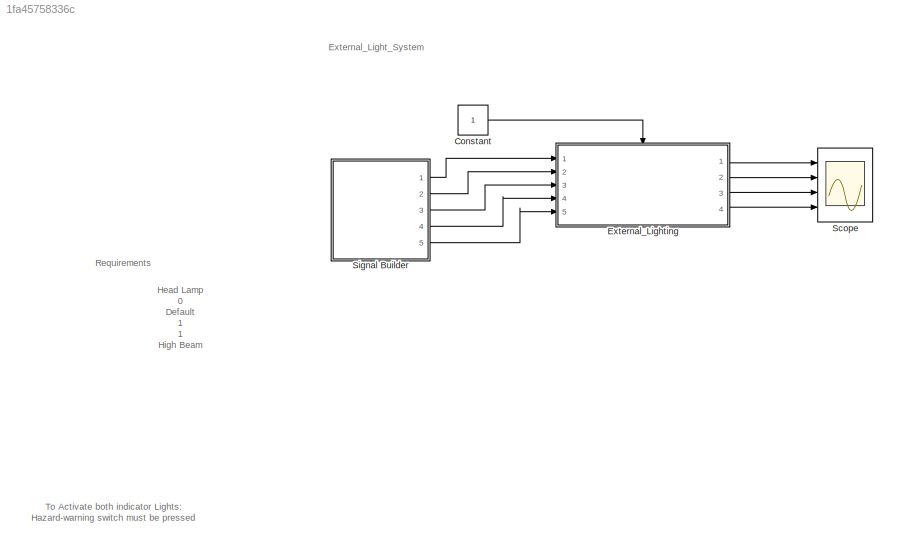
MODEL slx_1fa45758336c
KIND model
CONFIG AbsTol = auto
CONFIG EnableMultiTasking = off
CONFIG FixedStep = auto
CONFIG MaxStep = auto
CONFIG MinStep = auto
CONFIG RelTol = 1e-3
CONFIG SampleTimeConstraint = Unconstrained
CONFIG SolverName = VariableStepAuto
CONFIG StartTime = 0.0
CONFIG StopTime = 10.0
BLOCK [Constant] Constant
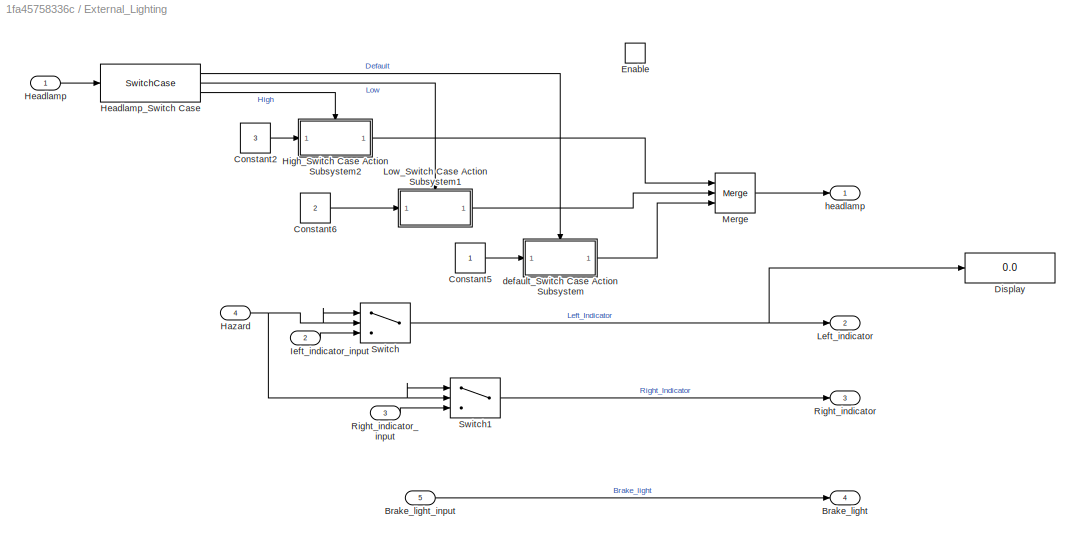
BLOCK [SubSystem] External_Lighting
  Ports = [5, 4, 1]
  RequestExecContextInheritance = off
BLOCK [Outport] External_Lighting/Brake_light
  Port = 4
BLOCK [Inport] External_Lighting/Brake_light_input
  Port = 5
BLOCK [Constant] External_Lighting/Constant2
  Value = 3
BLOCK [Constant] External_Lighting/Constant5
BLOCK [Constant] External_Lighting/Constant6
  Value = 2
BLOCK [Display] External_Lighting/Display
  Decimation = 1
  Ports = [1]
BLOCK [EnablePort] External_Lighting/Enable
  Ports = []
BLOCK [Inport] External_Lighting/Hazard
  Port = 4
BLOCK [Inport] External_Lighting/Headlamp
BLOCK [SwitchCase] External_Lighting/Headlamp_Switch Case
  CaseConditions = {0,-1,1}
  Ports = [1, 3]
  ShowDefaultCase = off
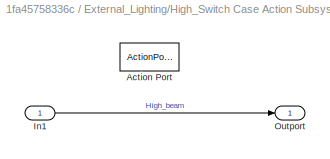
BLOCK [SubSystem] External_Lighting/High_Switch Case Action Subsystem2
  Ports = [1, 1, 0, 0, 0, 0, 0, 1]
  RequestExecContextInheritance = off
  TreatAsAtomicUnit = on
BLOCK [ActionPort] External_Lighting/High_Switch Case Action Subsystem2/Action Port
  ActionPortLabel = case [ 1 ]:
BLOCK [Inport] External_Lighting/High_Switch Case Action Subsystem2/In1
BLOCK [Outport] External_Lighting/High_Switch Case Action Subsystem2/Outport
BLOCK [Inport] External_Lighting/Ieft_indicator_input
  Port = 2
BLOCK [Outport] External_Lighting/Left_indicator
  Port = 2
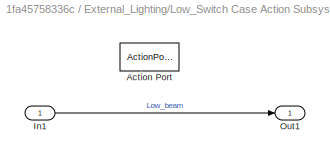
BLOCK [SubSystem] External_Lighting/Low_Switch Case Action Subsystem1
  Ports = [1, 1, 0, 0, 0, 0, 0, 1]
  RequestExecContextInheritance = off
  TreatAsAtomicUnit = on
BLOCK [ActionPort] External_Lighting/Low_Switch Case Action Subsystem1/Action Port
  ActionPortLabel = case [ -1 ]:
BLOCK [Inport] External_Lighting/Low_Switch Case Action Subsystem1/In1
BLOCK [Outport] External_Lighting/Low_Switch Case Action Subsystem1/Out1
BLOCK [Merge] External_Lighting/Merge
  Inputs = 3
  Ports = [3, 1]
BLOCK [Outport] External_Lighting/Right_indicator
  Port = 3
BLOCK [Inport] External_Lighting/Right_indicator_input
  Port = 3
BLOCK [Switch] External_Lighting/Switch
  Criteria = u2 > Threshold
  InputSameDT = off
  SaturateOnIntegerOverflow = off
BLOCK [Switch] External_Lighting/Switch1
  Criteria = u2 > Threshold
  InputSameDT = off
  SaturateOnIntegerOverflow = off
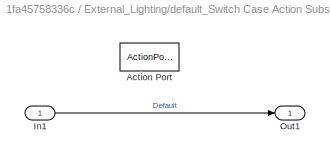
BLOCK [SubSystem] External_Lighting/default_Switch Case Action Subsystem
  Ports = [1, 1, 0, 0, 0, 0, 0, 1]
  RequestExecContextInheritance = off
  TreatAsAtomicUnit = on
BLOCK [ActionPort] External_Lighting/default_Switch Case Action Subsystem/Action Port
  ActionPortLabel = case [ 0 ]:
BLOCK [Inport] External_Lighting/default_Switch Case Action Subsystem/In1
BLOCK [Outport] External_Lighting/default_Switch Case Action Subsystem/Out1
BLOCK [Outport] External_Lighting/headlamp
BLOCK [Scope] Scope
  Floating = off
  NumInputPorts = 4
  Ports = [4]
  ScopeSpecificationString = Simulink.scopes.TimeScopeBlockCfg('CurrentConfiguration', extmgr.ConfigurationSet(extmgr.Configuration('Core','General UI',true),extmgr.Configuration('Core','Source UI',true),extmgr.Configuration('Sources','WiredSimulink',true),extmgr.Configuration('Visuals','Time Domain',true,'SerializedDisplays',{struct('MinYLimReal','-0.375','MaxYLimReal','3.375','YLabelReal','','MinYLimMag','0.00000','MaxYLimM...<+1469ch>
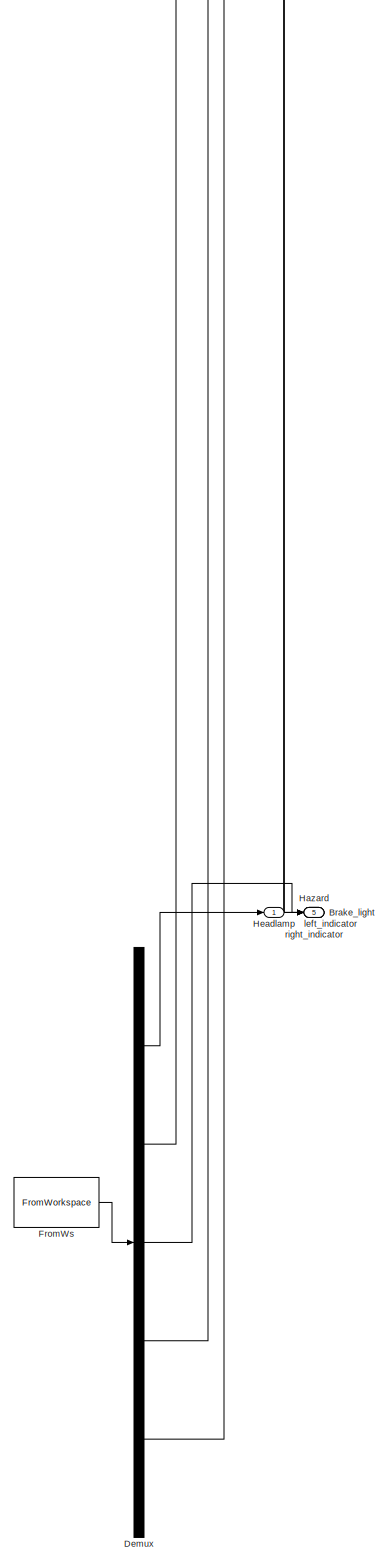
[diagram: Signal Builder - part 1/1, full width, bottom band]
BLOCK [SubSystem] Signal Builder
  ClipboardFcn = sigbuilder_block('clipboard');
  CloseFcn = sigbuilder_block('close');
  ContinueFcn = sigbuilder_block('continue');
  CopyFcn = sigbuilder_block('copy');
  DeleteFcn = sigbuilder_block('delete');
  LoadFcn = sigbuilder_block('load');
  MaskHideContents = on
  ModelCloseFcn = sigbuilder_block('modelClose');
  NameChangeFcn = sigbuilder_block('namechange');
  OpenFcn = sigbuilder_block('open',[468 122.4 550.5 359.85 ]);
  PauseFcn = sigbuilder_block('pause');
  Ports = [0, 5]
  PreSaveFcn = sigbuilder_block('preSave');
  RequestExecContextInheritance = off
  StartFcn = sigbuilder_block('start');
  StopFcn = sigbuilder_block('stop');
  Tag = STV Subsys
BLOCK [Outport] Signal Builder/Brake_light
  Port = 5
  Tag = STV Outport
BLOCK [Demux] Signal Builder/Demux
  DisplayOption = none
  Outputs = 5
  Ports = [1, 5]
  Tag = STV Demux
BLOCK [FromWorkspace] Signal Builder/FromWs
  Tag = STV FromWs
  VariableName = tuvar
BLOCK [Outport] Signal Builder/Hazard
  Port = 4
  Tag = STV Outport
BLOCK [Outport] Signal Builder/Headlamp
  Tag = STV Outport
BLOCK [Outport] Signal Builder/left_indicator
  Port = 2
  Tag = STV Outport
BLOCK [Outport] Signal Builder/right_indicator
  Port = 3
  Tag = STV Outport
ANNOTATION (root): Requirements
ANNOTATION (root): External_Light_System
ANNOTATION (root): Head Lamp 0 Default 1 1 High Beam 2 -1 Low Beam 3 left_Indicator 2 On 2 0 Off 0 Right_Indicator 2 On 2 0 Off 0 Brake 0 Off 0 1 On 1
ANNOTATION (root): To Activate both indicator Lights: Hazard-warning switch must be pressed
LINE Constant:1 -> External_Lighting:enable
LINE External_Lighting/Brake_light_input:1 -> External_Lighting/Brake_light:1
LINE External_Lighting/Constant2:1 -> External_Lighting/High_Switch Case Action Subsystem2:1
LINE External_Lighting/Constant5:1 -> External_Lighting/default_Switch Case Action Subsystem:1
LINE External_Lighting/Constant6:1 -> External_Lighting/Low_Switch Case Action Subsystem1:1
NET External_Lighting/Hazard:1 -> External_Lighting/Switch1:1, External_Lighting/Switch1:2, External_Lighting/Switch:1, External_Lighting/Switch:2
LINE External_Lighting/Headlamp:1 -> External_Lighting/Headlamp_Switch Case:1
LINE External_Lighting/Headlamp_Switch Case:1 -> External_Lighting/default_Switch Case Action Subsystem:ifaction
LINE External_Lighting/Headlamp_Switch Case:2 -> External_Lighting/Low_Switch Case Action Subsystem1:ifaction
LINE External_Lighting/Headlamp_Switch Case:3 -> External_Lighting/High_Switch Case Action Subsystem2:ifaction
LINE External_Lighting/High_Switch Case Action Subsystem2/In1:1 -> External_Lighting/High_Switch Case Action Subsystem2/Outport:1
LINE External_Lighting/High_Switch Case Action Subsystem2:1 -> External_Lighting/Merge:1
LINE External_Lighting/Ieft_indicator_input:1 -> External_Lighting/Switch:3
LINE External_Lighting/Low_Switch Case Action Subsystem1/In1:1 -> External_Lighting/Low_Switch Case Action Subsystem1/Out1:1
LINE External_Lighting/Low_Switch Case Action Subsystem1:1 -> External_Lighting/Merge:2
LINE External_Lighting/Merge:1 -> External_Lighting/headlamp:1
LINE External_Lighting/Right_indicator_input:1 -> External_Lighting/Switch1:3
LINE External_Lighting/Switch1:1 -> External_Lighting/Right_indicator:1
NET External_Lighting/Switch:1 -> External_Lighting/Display:1, External_Lighting/Left_indicator:1
LINE External_Lighting/default_Switch Case Action Subsystem/In1:1 -> External_Lighting/default_Switch Case Action Subsystem/Out1:1
LINE External_Lighting/default_Switch Case Action Subsystem:1 -> External_Lighting/Merge:3
LINE External_Lighting:1 -> Scope:1
LINE External_Lighting:2 -> Scope:2
LINE External_Lighting:3 -> Scope:3
LINE External_Lighting:4 -> Scope:4
LINE Signal Builder:1 -> External_Lighting:1
LINE Signal Builder:2 -> External_Lighting:2
LINE Signal Builder:3 -> External_Lighting:3
LINE Signal Builder:4 -> External_Lighting:4
LINE Signal Builder:5 -> External_Lighting:5
note: NET lines group one-source signal fan-out (src -> all destinations, sorted); 1:1 wires keep LINE
